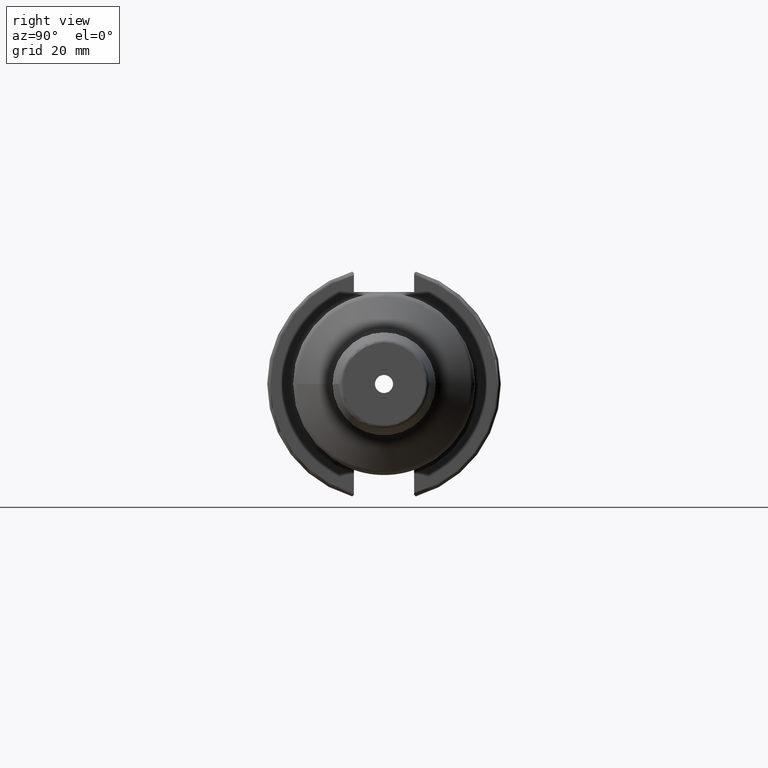
[diagram: clean part render]
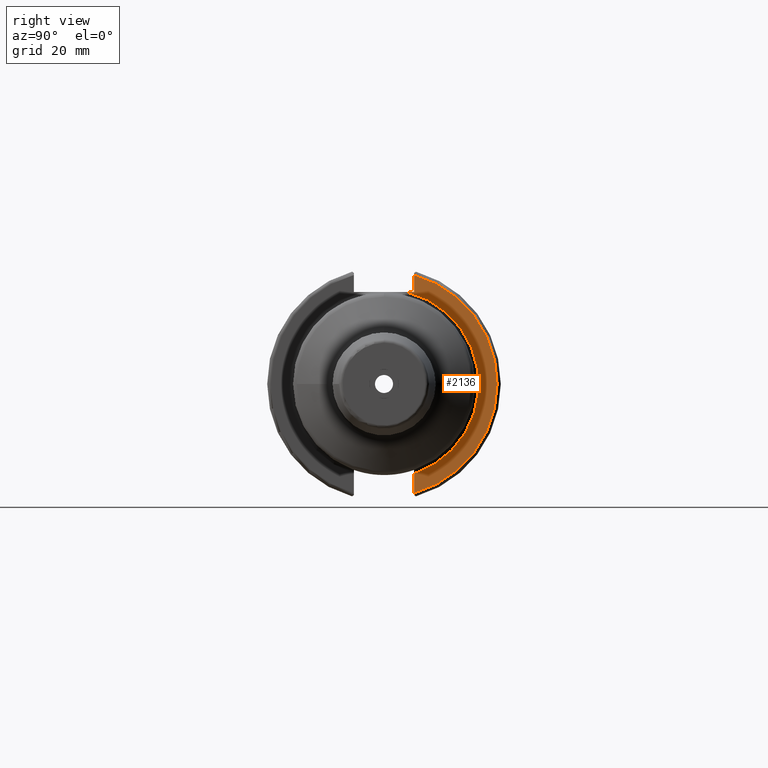
[diagram: same view with one face highlighted and labeled with its STEP entity id]
A machine part, right view. The second image highlights one B-rep face of the part: STEP entity #2136.
In plain terms, the highlighted planar face has unit normal (1, 0, 0).
Its self-contained STEP definition (entity closure, byte-faithful):
#53=PLANE('',#2371);
#207=FACE_OUTER_BOUND('',#320,.T.);
#320=EDGE_LOOP('',(#1631,#1632,#1633,#1634,#1635));
#425=LINE('',#3648,#521);
#426=LINE('',#3652,#522);
#427=LINE('',#3653,#523);
#521=VECTOR('',#2852,10.);
#522=VECTOR('',#2855,10.);
#523=VECTOR('',#2856,10.);
#680=CIRCLE('',#2341,25.75);
#700=CIRCLE('',#2372,30.75);
#855=VERTEX_POINT('',#3530);
#860=VERTEX_POINT('',#3558);
#881=VERTEX_POINT('',#3647);
#882=VERTEX_POINT('',#3649);
#883=VERTEX_POINT('',#3651);
#1131=EDGE_CURVE('',#860,#855,#680,.T.);
#1161=EDGE_CURVE('',#860,#881,#425,.T.);
#1162=EDGE_CURVE('',#882,#881,#700,.T.);
#1163=EDGE_CURVE('',#882,#883,#426,.T.);
#1164=EDGE_CURVE('',#883,#855,#427,.T.);
#1631=ORIENTED_EDGE('',*,*,#1131,.F.);
#1632=ORIENTED_EDGE('',*,*,#1161,.T.);
#1633=ORIENTED_EDGE('',*,*,#1162,.F.);
#1634=ORIENTED_EDGE('',*,*,#1163,.T.);
#1635=ORIENTED_EDGE('',*,*,#1164,.T.);
#2136=ADVANCED_FACE('',(#207),#53,.T.);
#2341=AXIS2_PLACEMENT_3D('',#3569,#2781,#2782);
#2371=AXIS2_PLACEMENT_3D('',#3646,#2850,#2851);
#2372=AXIS2_PLACEMENT_3D('',#3650,#2853,#2854);
#2781=DIRECTION('center_axis',(1.,0.,0.));
#2782=DIRECTION('ref_axis',(0.,6.12323399573677E-17,1.));
#2850=DIRECTION('center_axis',(1.,0.,0.));
#2851=DIRECTION('ref_axis',(0.,0.,-1.));
#2852=DIRECTION('',(0.,0.,-1.));
#2853=DIRECTION('center_axis',(-1.,0.,0.));
#2854=DIRECTION('ref_axis',(0.,1.,-6.12323399573677E-17));
#2855=DIRECTION('',(0.,0.,-1.));
#2856=DIRECTION('',(0.,-1.,0.));
#3530=CARTESIAN_POINT('',(19.05,6.16948133962656,25.));
#3558=CARTESIAN_POINT('',(19.05,8.19,-24.4128326910254));
#3569=CARTESIAN_POINT('Origin',(19.05,0.,0.));
#3646=CARTESIAN_POINT('Origin',(19.05,0.,0.));
#3647=CARTESIAN_POINT('',(19.05,8.19,-29.6392712461019));
#3648=CARTESIAN_POINT('',(19.05,8.19,-11.3));
#3649=CARTESIAN_POINT('',(19.05,8.19,29.6392712461019));
#3650=CARTESIAN_POINT('Origin',(19.05,0.,0.));
#3651=CARTESIAN_POINT('',(19.05,8.19,25.));
#3652=CARTESIAN_POINT('',(19.05,8.19,12.5));
#3653=CARTESIAN_POINT('',(19.05,0.,25.));